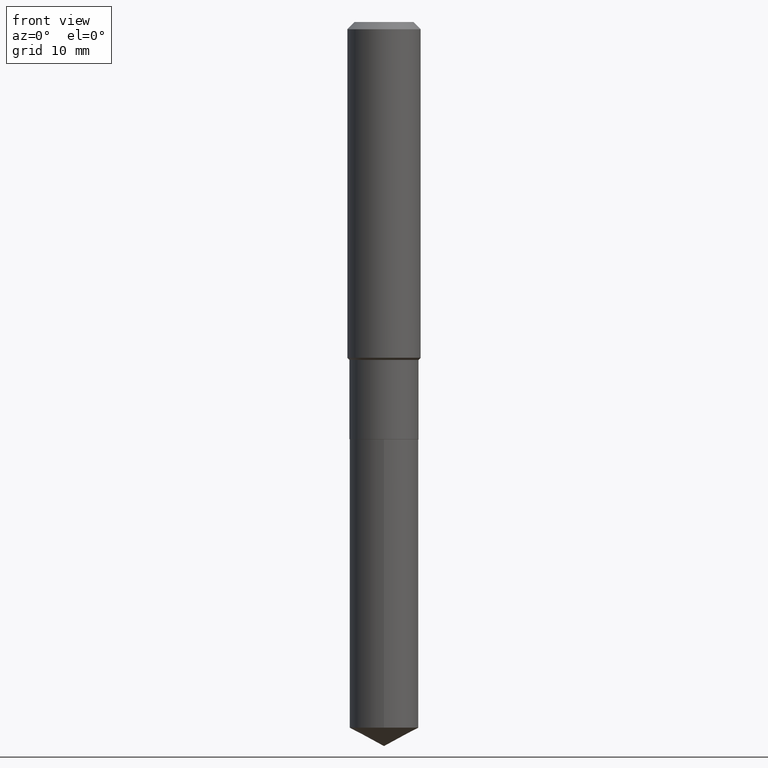
[diagram: clean part render]
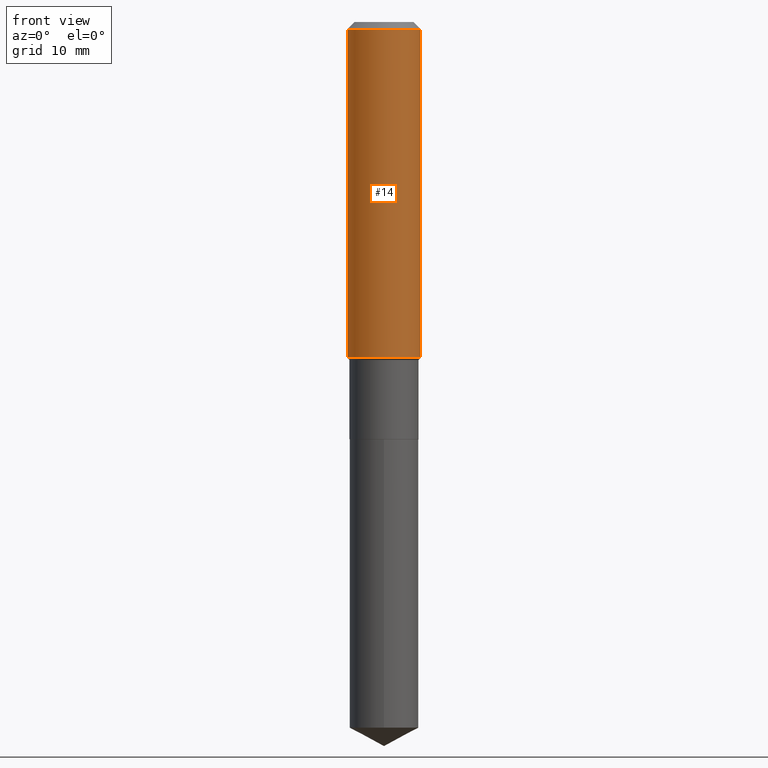
[diagram: same view with one face highlighted and labeled with its STEP entity id]
A machine part, front view. The second image highlights one B-rep face of the part: STEP entity #14.
In plain terms, the highlighted cylindrical surface (partial cylindrical patch) has radius 4.0005 mm, axis along (-0, 0, 1).
Its self-contained STEP definition (entity closure, byte-faithful):
#8 = VERTEX_POINT ( 'NONE', #126 ) ;
#9 = CIRCLE ( 'NONE', #351, 0.1575000000000001676 ) ;
#14 = ADVANCED_FACE ( 'NONE', ( #481 ), #246, .T. ) ;
#22 = DIRECTION ( 'NONE',  ( 1.000000000000000000, -6.982962677686267499E-15, 4.876176775795936353E-29 ) ) ;
#43 = ORIENTED_EDGE ( 'NONE', *, *, #475, .T. ) ;
#65 = ORIENTED_EDGE ( 'NONE', *, *, #277, .F. ) ;
#70 = CARTESIAN_POINT ( 'NONE',  ( 0.1575000000000001676, -6.135405582682112923E-15, -1.442249999999999588 ) ) ;
#74 = CIRCLE ( 'NONE', #294, 0.1575000000000000011 ) ;
#83 = VECTOR ( 'NONE', #341, 39.37007874015748143 ) ;
#94 = VECTOR ( 'NONE', #466, 39.37007874015748143 ) ;
#98 = CARTESIAN_POINT ( 'NONE',  ( 3.526977385720512669E-29, -5.035588960946525443E-15, -1.442249999999999588 ) ) ;
#110 = DIRECTION ( 'NONE',  ( -2.445468806185136597E-29, 3.491481338843145583E-15, 1.000000000000000000 ) ) ;
#126 = CARTESIAN_POINT ( 'NONE',  ( -0.1575000000000000011, -1.453680502737883861E-15, -0.03150000000000019451 ) ) ;
#132 = DIRECTION ( 'NONE',  ( 1.000000000000000000, -6.982962677686267499E-15, 0.000000000000000000 ) ) ;
#135 = DIRECTION ( 'NONE',  ( -2.445468806185136597E-29, 3.491481338843145583E-15, 1.000000000000000000 ) ) ;
#144 = CARTESIAN_POINT ( 'NONE',  ( 7.703226739483228723E-31, -1.099816621735597661E-16, -0.03150000000000019451 ) ) ;
#150 = CARTESIAN_POINT ( 'NONE',  ( 0.1575000000000000011, -1.209798283909146741E-15, -0.03150000000000019451 ) ) ;
#151 = VERTEX_POINT ( 'NONE', #304 ) ;
#166 = DIRECTION ( 'NONE',  ( -2.445468806185136597E-29, 3.491481338843145583E-15, 1.000000000000000000 ) ) ;
#184 = ORIENTED_EDGE ( 'NONE', *, *, #245, .T. ) ;
#202 = CARTESIAN_POINT ( 'NONE',  ( 0.1575000000000000844, -1.099816621735587677E-15, 7.679978421878603638E-30 ) ) ;
#211 = CARTESIAN_POINT ( 'NONE',  ( 0.000000000000000000, 0.000000000000000000, 0.000000000000000000 ) ) ;
#223 = LINE ( 'NONE', #266, #83 ) ;
#229 = AXIS2_PLACEMENT_3D ( 'NONE', #211, #166, #22 ) ;
#245 = EDGE_CURVE ( 'NONE', #470, #279, #274, .T. ) ;
#246 = CYLINDRICAL_SURFACE ( 'NONE', #229, 0.1575000000000000844 ) ;
#266 = CARTESIAN_POINT ( 'NONE',  ( -0.1575000000000000844, 1.119104808822158392E-15, -7.747322767151481189E-30 ) ) ;
#274 = LINE ( 'NONE', #202, #94 ) ;
#277 = EDGE_CURVE ( 'NONE', #8, #279, #74, .T. ) ;
#279 = VERTEX_POINT ( 'NONE', #150 ) ;
#294 = AXIS2_PLACEMENT_3D ( 'NONE', #144, #110, #417 ) ;
#304 = CARTESIAN_POINT ( 'NONE',  ( -0.1575000000000001676, -3.916484152124366261E-15, -1.442249999999999588 ) ) ;
#341 = DIRECTION ( 'NONE',  ( -2.445468806185136877E-29, 3.491481338843145188E-15, 1.000000000000000000 ) ) ;
#351 = AXIS2_PLACEMENT_3D ( 'NONE', #98, #135, #132 ) ;
#387 = ORIENTED_EDGE ( 'NONE', *, *, #446, .F. ) ;
#417 = DIRECTION ( 'NONE',  ( 1.000000000000000000, -6.982962677686265922E-15, 0.000000000000000000 ) ) ;
#446 = EDGE_CURVE ( 'NONE', #151, #8, #223, .T. ) ;
#466 = DIRECTION ( 'NONE',  ( -2.445468806185136877E-29, 3.491481338843145188E-15, 1.000000000000000000 ) ) ;
#467 = EDGE_LOOP ( 'NONE', ( #387, #43, #184, #65 ) ) ;
#470 = VERTEX_POINT ( 'NONE', #70 ) ;
#475 = EDGE_CURVE ( 'NONE', #151, #470, #9, .T. ) ;
#481 = FACE_OUTER_BOUND ( 'NONE', #467, .T. ) ;